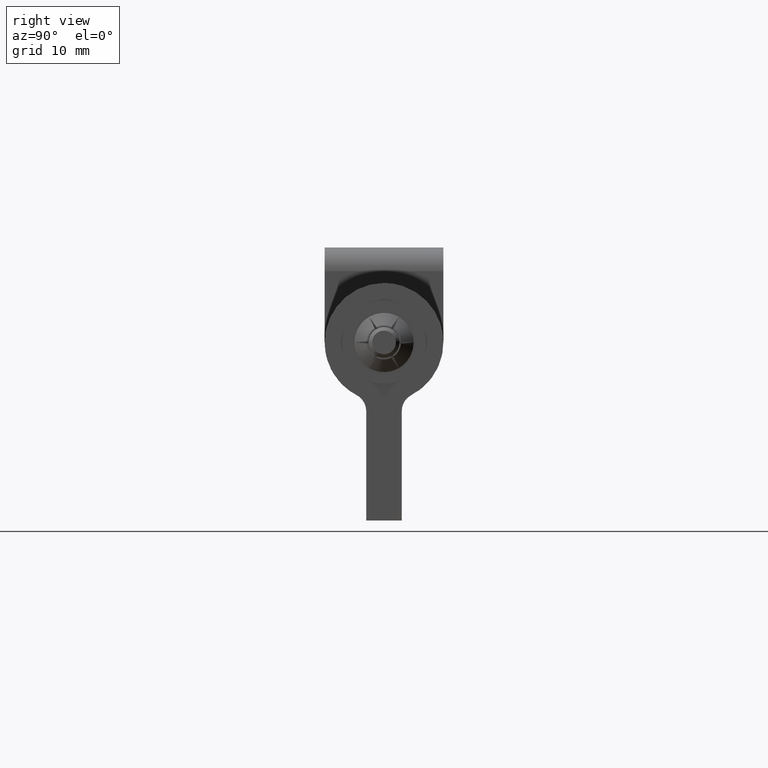
[diagram: clean part render]
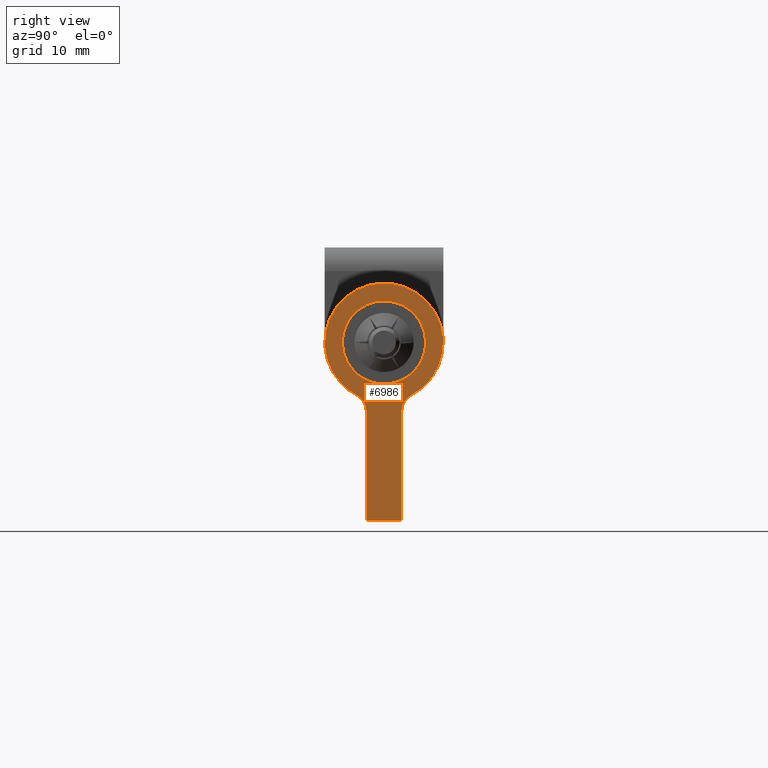
[diagram: same view with one face highlighted and labeled with its STEP entity id]
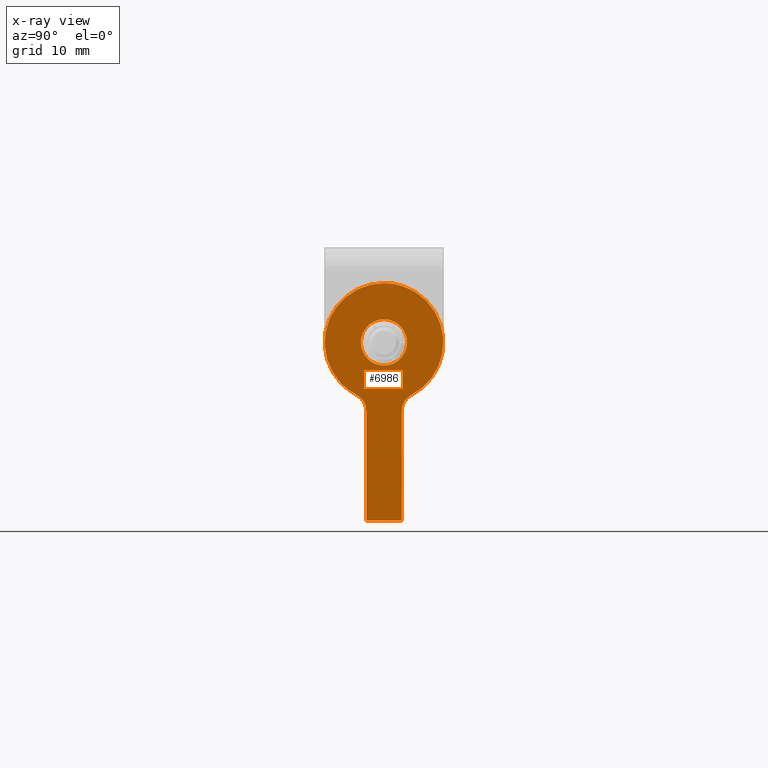
[diagram: x-ray of the same camera — body ghosted, the highlighted face saturated]
A machine part, right view. The second image highlights one B-rep face of the part: STEP entity #6986.
The next image is the same camera in x-ray: the body ghosted, the highlighted face saturated — about 0% of this face is hidden behind the body in this view.
In plain terms, the highlighted face is a freeform B-spline surface patch.
Its self-contained STEP definition (entity closure, byte-faithful):
#6224=CARTESIAN_POINT('',(27.500000000000000,1.342291332181533,1.414479861153809));
#6225=VERTEX_POINT('',#6224);
#6231=CARTESIAN_POINT('',(27.500000000000000,0.0,1.949999999999801));
#6232=VERTEX_POINT('',#6231);
#6233=CARTESIAN_POINT('',(27.500000000000000,0.0,1.949999999999801));
#6234=CARTESIAN_POINT('',(27.499999999999989,0.131085257825847,1.950019148484640));
#6235=CARTESIAN_POINT('',(27.500000000000021,0.385526954488344,1.924236444002689));
#6236=CARTESIAN_POINT('',(27.500000000000039,0.859638123044527,1.779432093107288));
#6237=CARTESIAN_POINT('',(27.500000000000000,1.169023787110952,1.579207415413860));
#6238=CARTESIAN_POINT('',(27.500000000000000,1.342291332181533,1.414479861153809));
#6239=B_SPLINE_CURVE_WITH_KNOTS('',3,(#6233,#6234,#6235,#6236,#6237,#6238),.UNSPECIFIED.,.F.,.U.,(4,1,1,4),(0.000000016679002,0.393253762653191,0.763363951020052,1.480484196235033),.UNSPECIFIED.);
#6240=EDGE_CURVE('',#6232,#6225,#6239,.T.);
#6242=CARTESIAN_POINT('',(27.500000000000000,-1.949999999999867,0.000000720926394));
#6243=VERTEX_POINT('',#6242);
#6244=CARTESIAN_POINT('',(27.500000000000000,-1.949999999999867,0.000000720926394));
#6245=CARTESIAN_POINT('',(27.500000000000082,-1.950076794386573,0.191447498596886));
#6246=CARTESIAN_POINT('',(27.499999999999890,-1.901441406703051,0.518445249512749));
#6247=CARTESIAN_POINT('',(27.500000000000220,-1.708326961989710,0.976681596086227));
#6248=CARTESIAN_POINT('',(27.499999999999801,-1.423267122195394,1.366071886747954));
#6249=CARTESIAN_POINT('',(27.500000000000039,-1.002193951338540,1.703113457387414));
#6250=CARTESIAN_POINT('',(27.499999999999979,-0.510511991747563,1.906741219698409));
#6251=CARTESIAN_POINT('',(27.500000000000000,-0.159530525317432,1.950026352135950));
#6252=CARTESIAN_POINT('',(27.500000000000000,0.0,1.949999999999801));
#6253=B_SPLINE_CURVE_WITH_KNOTS('',3,(#6244,#6245,#6246,#6247,#6248,#6249,#6250,#6251,#6252),.UNSPECIFIED.,.F.,.U.,(4,1,1,1,1,1,4),(0.000000068661605,0.574321273597042,0.981143121086012,1.483686361999287,2.010133180974871,2.584474332362506,3.063071650283805),.UNSPECIFIED.);
#6254=EDGE_CURVE('',#6243,#6232,#6253,.T.);
#6256=CARTESIAN_POINT('',(27.499999999999989,-1.342291332181537,-1.414479861154212));
#6257=VERTEX_POINT('',#6256);
#6258=CARTESIAN_POINT('',(27.499999999999989,-1.342291332181537,-1.414479861154212));
#6259=CARTESIAN_POINT('',(27.500000000000060,-1.479878062439739,-1.284036957919257));
#6260=CARTESIAN_POINT('',(27.499999999999901,-1.670118977709265,-1.041544829955399));
#6261=CARTESIAN_POINT('',(27.500000000000082,-1.891496593391662,-0.560401494684096));
#6262=CARTESIAN_POINT('',(27.499999999999979,-1.950146390161040,-0.222574069855164));
#6263=CARTESIAN_POINT('',(27.500000000000000,-1.949999999999867,0.000000720926394));
#6264=B_SPLINE_CURVE_WITH_KNOTS('',3,(#6258,#6259,#6260,#6261,#6262,#6263),.UNSPECIFIED.,.F.,.U.,(4,1,1,4),(0.000000018265626,0.568747674012474,0.914933369106455,1.582588503987009),.UNSPECIFIED.);
#6265=EDGE_CURVE('',#6257,#6243,#6264,.T.);
#6295=CARTESIAN_POINT('',(27.500000000000000,0.0,-1.950000000000199));
#6296=VERTEX_POINT('',#6295);
#6297=CARTESIAN_POINT('',(27.500000000000000,0.0,-1.950000000000199));
#6298=CARTESIAN_POINT('',(27.500000000000011,-0.200490625992116,-1.950099767526987));
#6299=CARTESIAN_POINT('',(27.499999999999940,-0.562848326146787,-1.893608594696275));
#6300=CARTESIAN_POINT('',(27.500000000000060,-1.014267371166129,-1.684917088191418));
#6301=CARTESIAN_POINT('',(27.499999999999840,-1.247215225764810,-1.504719661616157));
#6302=CARTESIAN_POINT('',(27.499999999999989,-1.342291332181537,-1.414479861154212));
#6303=B_SPLINE_CURVE_WITH_KNOTS('',3,(#6297,#6298,#6299,#6300,#6301,#6302),.UNSPECIFIED.,.F.,.U.,(4,1,1,4),(0.000000016679024,0.601451125135441,1.087230450261267,1.480484196235036),.UNSPECIFIED.);
#6304=EDGE_CURVE('',#6296,#6257,#6303,.T.);
#6306=CARTESIAN_POINT('',(27.500000000000000,1.949999999999867,-0.000000720926592));
#6307=VERTEX_POINT('',#6306);
#6308=CARTESIAN_POINT('',(27.500000000000000,1.949999999999867,-0.000000720926592));
#6309=CARTESIAN_POINT('',(27.499999999999989,1.950079178258252,-0.191449522407014));
#6310=CARTESIAN_POINT('',(27.500000000000039,1.901438401890969,-0.518442441152024));
#6311=CARTESIAN_POINT('',(27.499999999999961,1.723889367511873,-0.939717081283865));
#6312=CARTESIAN_POINT('',(27.500000000000110,1.524362562472494,-1.230509168814274));
#6313=CARTESIAN_POINT('',(27.499999999999680,1.274701714123656,-1.489553013465598));
#6314=CARTESIAN_POINT('',(27.500000000000639,0.975512982211194,-1.705821144345358));
#6315=CARTESIAN_POINT('',(27.499999999999780,0.534386781127100,-1.898139772757067));
#6316=CARTESIAN_POINT('',(27.500000000000060,0.199429028481012,-1.950094292165110));
#6317=CARTESIAN_POINT('',(27.500000000000000,0.0,-1.950000000000199));
#6318=B_SPLINE_CURVE_WITH_KNOTS('',3,(#6308,#6309,#6310,#6311,#6312,#6313,#6314,#6315,#6316,#6317),.UNSPECIFIED.,.F.,.U.,(4,1,1,1,1,1,1,4),(0.000000068661355,0.574321273596896,0.981143121085934,1.364027356144193,1.627240611136350,2.057994073599168,2.464817441022490,3.063071650283918),.UNSPECIFIED.);
#6319=EDGE_CURVE('',#6307,#6296,#6318,.T.);
#6321=CARTESIAN_POINT('',(27.500000000000000,1.342291332181533,1.414479861153809));
#6322=CARTESIAN_POINT('',(27.500000000000028,1.503843699547165,1.261380274344431));
#6323=CARTESIAN_POINT('',(27.500000000000050,1.723513200522075,0.966156286857733));
#6324=CARTESIAN_POINT('',(27.499999999999950,1.911083509012008,0.469802691467557));
#6325=CARTESIAN_POINT('',(27.500000000000039,1.950047199207168,0.164856615243917));
#6326=CARTESIAN_POINT('',(27.500000000000000,1.949999999999867,-0.000000720926592));
#6327=B_SPLINE_CURVE_WITH_KNOTS('',3,(#6321,#6322,#6323,#6324,#6325,#6326),.UNSPECIFIED.,.F.,.U.,(4,1,1,4),(0.000000018265609,0.667655787305032,1.088028434273132,1.582588503986807),.UNSPECIFIED.);
#6328=EDGE_CURVE('',#6225,#6307,#6327,.T.);
#6877=CARTESIAN_POINT('',(27.500000000000000,-5.497577336155398,5.998999961219059));
#6878=CARTESIAN_POINT('',(27.500000000000000,5.497599600568662,5.998999961219059));
#6879=CARTESIAN_POINT('',(27.500000000000000,-5.497577336155398,-15.999000497677111));
#6880=CARTESIAN_POINT('',(27.500000000000000,5.497599600568661,-15.999000497677111));
#6881=B_SPLINE_SURFACE_WITH_KNOTS('',1,1,((#6877,#6879),(#6878,#6880)),.UNSPECIFIED.,.F.,.F.,.U.,(2,2),(2,2),(0.0,10.995176936724061),(0.0,21.998000458896168),.UNSPECIFIED.);
#6882=CARTESIAN_POINT('',(27.500000000000000,1.499999999999956,-15.0));
#6883=VERTEX_POINT('',#6882);
#6884=CARTESIAN_POINT('',(27.500000000000000,1.499999999999956,-5.766281297335500));
#6885=VERTEX_POINT('',#6884);
#6886=CARTESIAN_POINT('',(27.500000000000000,1.499999999999956,-15.0));
#6887=CARTESIAN_POINT('',(27.500000000000000,1.499999999999956,-5.766281297335500));
#6888=QUASI_UNIFORM_CURVE('',1,(#6886,#6887),.UNSPECIFIED.,.F.,.U.);
#6889=EDGE_CURVE('',#6883,#6885,#6888,.T.);
#6890=ORIENTED_EDGE('',*,*,#6889,.T.);
#6891=CARTESIAN_POINT('',(27.500000000000000,2.307692307692285,-4.435600997950394));
#6892=VERTEX_POINT('',#6891);
#6893=CARTESIAN_POINT('',(27.500000000000000,2.307692307692285,-4.435600997950394));
#6894=CARTESIAN_POINT('',(27.499999999999979,2.194246960986824,-4.494583477863906));
#6895=CARTESIAN_POINT('',(27.500000000000050,1.989658925344524,-4.636904074126316));
#6896=CARTESIAN_POINT('',(27.500000000000039,1.764264957564763,-4.895964283548630));
#6897=CARTESIAN_POINT('',(27.499999999999989,1.603327026401307,-5.188528703112058));
#6898=CARTESIAN_POINT('',(27.499999999999911,1.517460670328752,-5.476459784068423));
#6899=CARTESIAN_POINT('',(27.500000000000199,1.499998541510455,-5.681043598111240));
#6900=CARTESIAN_POINT('',(27.500000000000000,1.499999999999956,-5.766281297335500));
#6901=B_SPLINE_CURVE_WITH_KNOTS('',3,(#6893,#6894,#6895,#6896,#6897,#6898,#6899,#6900),.UNSPECIFIED.,.F.,.U.,(4,1,1,1,1,4),(0.000000041447560,0.383582445324145,0.741597782712064,1.022880408639564,1.380901650047113,1.636621350202508),.UNSPECIFIED.);
#6902=EDGE_CURVE('',#6892,#6885,#6901,.T.);
#6903=ORIENTED_EDGE('',*,*,#6902,.F.);
#6904=CARTESIAN_POINT('',(27.500000000000000,-0.000000464764678,4.999999999983750));
#6905=VERTEX_POINT('',#6904);
#6906=CARTESIAN_POINT('',(27.500000000000000,2.307692307692285,-4.435600997950394));
#6907=CARTESIAN_POINT('',(27.500000000000082,2.630566139442298,-4.267687952114410));
#6908=CARTESIAN_POINT('',(27.499999999999929,3.239386350954044,-3.860925608635671));
#6909=CARTESIAN_POINT('',(27.499999999999972,3.938564045468145,-3.130496354111792));
#6910=CARTESIAN_POINT('',(27.500000000000089,4.427400877962104,-2.369721625601885));
#6911=CARTESIAN_POINT('',(27.500000000000060,4.766939726987923,-1.588566660990853));
#6912=CARTESIAN_POINT('',(27.499999999999730,4.943705419605406,-0.861285890597106));
#6913=CARTESIAN_POINT('',(27.500000000000231,5.014501084954577,-0.101023541839710));
#6914=CARTESIAN_POINT('',(27.499999999999890,4.982165861818972,0.663436820576989));
#6915=CARTESIAN_POINT('',(27.499999999999861,4.808160402439943,1.444958861853083));
#6916=CARTESIAN_POINT('',(27.500000000000490,4.534641724945540,2.139687989869519));
#6917=CARTESIAN_POINT('',(27.499999999999169,4.223698762618318,2.702134464026016));
#6918=CARTESIAN_POINT('',(27.500000000000419,3.749970072918357,3.345224003954701));
#6919=CARTESIAN_POINT('',(27.500000000000089,3.133290338356351,3.936338764490216));
#6920=CARTESIAN_POINT('',(27.499999999999691,2.416729809006332,4.397477531913484));
#6921=CARTESIAN_POINT('',(27.500000000000181,1.768530926236978,4.691859357963511));
#6922=CARTESIAN_POINT('',(27.499999999999918,0.987753839831114,4.930266724588270));
#6923=CARTESIAN_POINT('',(27.500000000000050,0.381257636714826,5.000088368590133));
#6924=CARTESIAN_POINT('',(27.500000000000000,-0.000000464764678,4.999999999983750));
#6925=B_SPLINE_CURVE_WITH_KNOTS('',3,(#6906,#6907,#6908,#6909,#6910,#6911,#6912,#6913,#6914,#6915,#6916,#6917,#6918,#6919,#6920,#6921,#6922,#6923,#6924),.UNSPECIFIED.,.F.,.U.,(4,1,1,1,1,1,1,1,1,1,1,1,1,1,1,1,4),(0.000000092249815,1.091773906441050,2.183557261051510,3.015403457042368,3.795259818833650,4.731071436242587,5.250989784953005,6.082812086292151,7.018589248422228,7.642490315431430,8.318357726385070,8.942234891468781,10.034026331055330,10.865872475891949,11.489756848204880,12.165629790711630,13.309380498463019),.UNSPECIFIED.);
#6926=EDGE_CURVE('',#6892,#6905,#6925,.T.);
#6927=ORIENTED_EDGE('',*,*,#6926,.T.);
#6928=CARTESIAN_POINT('',(27.500000000000000,-2.307692307684925,-4.435600997936240));
#6929=VERTEX_POINT('',#6928);
#6930=CARTESIAN_POINT('',(27.500000000000000,-0.000000464764678,4.999999999983750));
#6931=CARTESIAN_POINT('',(27.499999999999989,-0.433260470423060,5.000125725049175));
#6932=CARTESIAN_POINT('',(27.500000000000011,-1.091706727333685,4.913845114347652));
#6933=CARTESIAN_POINT('',(27.500000000000011,-2.045597303520625,4.589737350791983));
#6934=CARTESIAN_POINT('',(27.499999999999812,-2.749320783719387,4.206140595439555));
#6935=CARTESIAN_POINT('',(27.500000000000231,-3.361630075944513,3.720299626417091));
#6936=CARTESIAN_POINT('',(27.499999999999520,-3.833118879609792,3.234216270155736));
#6937=CARTESIAN_POINT('',(27.500000000000451,-4.307282820797953,2.590751563176381));
#6938=CARTESIAN_POINT('',(27.499999999999510,-4.677210491528129,1.840697510452119));
#6939=CARTESIAN_POINT('',(27.500000000000750,-4.918490395063721,1.006086889252949));
#6940=CARTESIAN_POINT('',(27.499999999999570,-5.029553133734728,0.126186244511825));
#6941=CARTESIAN_POINT('',(27.500000000000171,-4.964328983412024,-0.847917402477408));
#6942=CARTESIAN_POINT('',(27.499999999999972,-4.718524331417197,-1.719476467729074));
#6943=CARTESIAN_POINT('',(27.500000000000071,-4.373853977543371,-2.459218612929519));
#6944=CARTESIAN_POINT('',(27.499999999999620,-3.924901390234594,-3.142209377083766));
#6945=CARTESIAN_POINT('',(27.500000000001180,-3.238500300461913,-3.859268610926267));
#6946=CARTESIAN_POINT('',(27.499999999997900,-2.645950191456793,-4.259708351700351));
#6947=CARTESIAN_POINT('',(27.500000000000000,-2.307692307684925,-4.435600997936240));
#6948=B_SPLINE_CURVE_WITH_KNOTS('',3,(#6930,#6931,#6932,#6933,#6934,#6935,#6936,#6937,#6938,#6939,#6940,#6941,#6942,#6943,#6944,#6945,#6946,#6947),.UNSPECIFIED.,.F.,.U.,(4,1,1,1,1,1,1,1,1,1,1,1,1,1,1,4),(0.000000092236368,1.299734312704233,1.975595295541311,3.015403246430571,3.691275760089441,4.315152298736933,5.043028729781817,6.082811661454971,6.810626092762210,7.642489781668554,8.734274660328596,9.722085730644068,10.345964616680250,11.177806357608590,12.165628941037010,13.309379568908829),.UNSPECIFIED.);
#6949=EDGE_CURVE('',#6905,#6929,#6948,.T.);
#6950=ORIENTED_EDGE('',*,*,#6949,.T.);
#6951=CARTESIAN_POINT('',(27.500000000000000,-1.500000000000125,-5.766281297335451));
#6952=VERTEX_POINT('',#6951);
#6953=CARTESIAN_POINT('',(27.500000000000000,-1.500000000000125,-5.766281297335451));
#6954=CARTESIAN_POINT('',(27.500000000000039,-1.499987906910432,-5.663993681022733));
#6955=CARTESIAN_POINT('',(27.499999999999989,-1.521007946507767,-5.459424036546097));
#6956=CARTESIAN_POINT('',(27.499999999999929,-1.624497850459922,-5.132667620827027));
#6957=CARTESIAN_POINT('',(27.500000000000320,-1.798602744768696,-4.845842431780277));
#6958=CARTESIAN_POINT('',(27.499999999999300,-2.038428800387276,-4.601371060536224));
#6959=CARTESIAN_POINT('',(27.500000000001059,-2.209376751107467,-4.486725758495573));
#6960=CARTESIAN_POINT('',(27.500000000000000,-2.307692307684925,-4.435600997936240));
#6961=B_SPLINE_CURVE_WITH_KNOTS('',3,(#6953,#6954,#6955,#6956,#6957,#6958,#6959,#6960),.UNSPECIFIED.,.F.,.U.,(4,1,1,1,1,4),(0.000000041448474,0.306863580844278,0.613740983012101,1.022880408641476,1.304183321539522,1.636621350205250),.UNSPECIFIED.);
#6962=EDGE_CURVE('',#6952,#6929,#6961,.T.);
#6963=ORIENTED_EDGE('',*,*,#6962,.F.);
#6964=CARTESIAN_POINT('',(27.500000000000000,-1.500000000000000,-15.0));
#6965=VERTEX_POINT('',#6964);
#6966=CARTESIAN_POINT('',(27.500000000000000,-1.500000000000125,-5.766281297335451));
#6967=CARTESIAN_POINT('',(27.500000000000000,-1.500000000000000,-15.0));
#6968=QUASI_UNIFORM_CURVE('',1,(#6966,#6967),.UNSPECIFIED.,.F.,.U.);
#6969=EDGE_CURVE('',#6952,#6965,#6968,.T.);
#6970=ORIENTED_EDGE('',*,*,#6969,.T.);
#6971=CARTESIAN_POINT('',(27.500000000000000,-1.500000000000000,-15.0));
#6972=CARTESIAN_POINT('',(27.500000000000000,1.499999999999956,-15.0));
#6973=QUASI_UNIFORM_CURVE('',1,(#6971,#6972),.UNSPECIFIED.,.F.,.U.);
#6974=EDGE_CURVE('',#6965,#6883,#6973,.T.);
#6975=ORIENTED_EDGE('',*,*,#6974,.T.);
#6976=EDGE_LOOP('',(#6890,#6903,#6927,#6950,#6963,#6970,#6975));
#6977=FACE_OUTER_BOUND('',#6976,.T.);
#6978=ORIENTED_EDGE('',*,*,#6254,.T.);
#6979=ORIENTED_EDGE('',*,*,#6240,.T.);
#6980=ORIENTED_EDGE('',*,*,#6328,.T.);
#6981=ORIENTED_EDGE('',*,*,#6319,.T.);
#6982=ORIENTED_EDGE('',*,*,#6304,.T.);
#6983=ORIENTED_EDGE('',*,*,#6265,.T.);
#6984=EDGE_LOOP('',(#6978,#6979,#6980,#6981,#6982,#6983));
#6985=FACE_BOUND('',#6984,.T.);
#6986=ADVANCED_FACE('',(#6977,#6985),#6881,.F.);